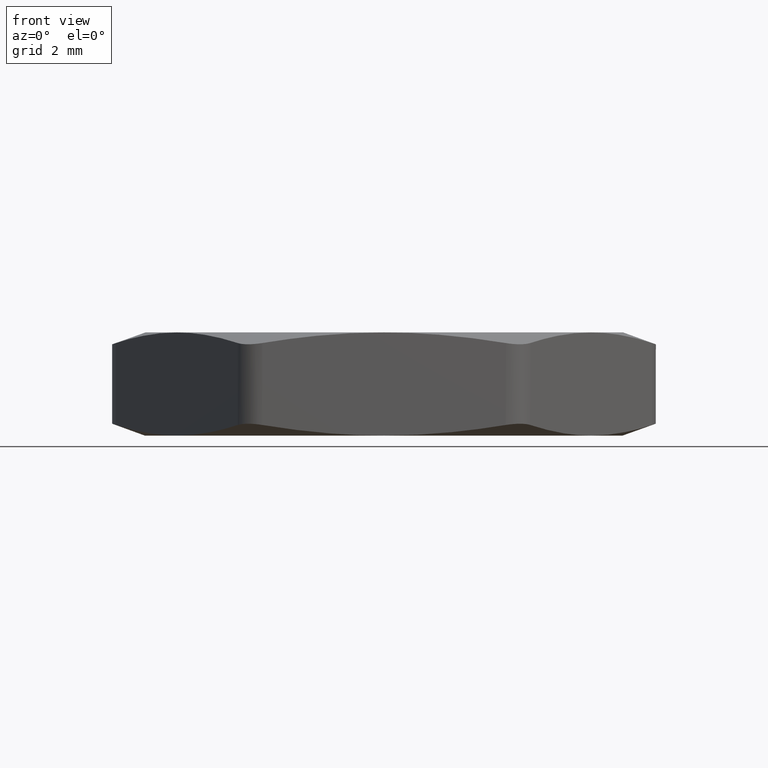
[diagram: clean part render]
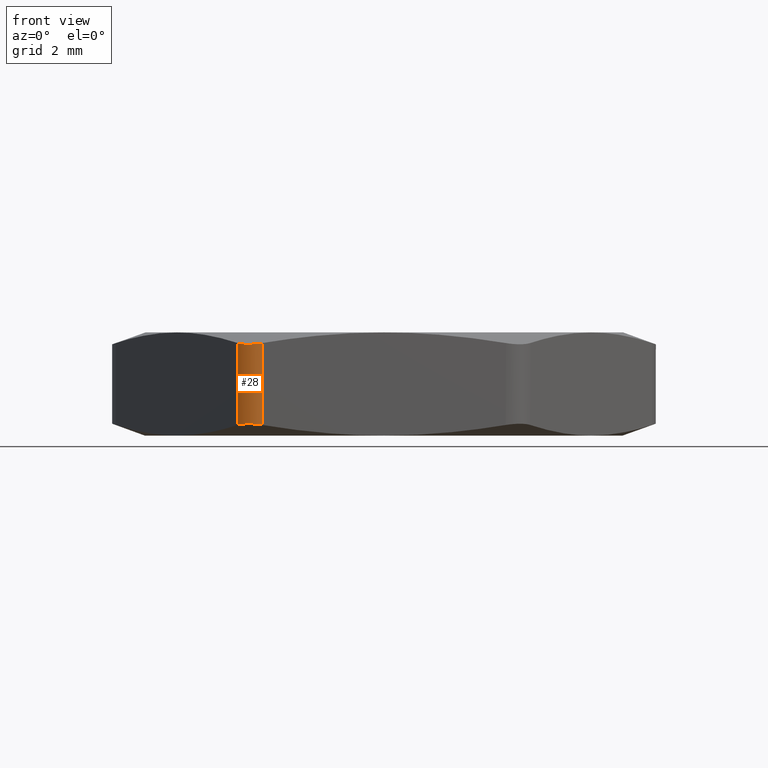
[diagram: same view with one face highlighted and labeled with its STEP entity id]
A machine part, front view. The second image highlights one B-rep face of the part: STEP entity #28.
In plain terms, the highlighted cylindrical surface (edge-blend (fillet) strip) has radius 0.762 mm, axis along (0, 0, -1).
Its self-contained STEP definition (entity closure, byte-faithful):
#19 = EDGE_CURVE ( 'NONE', #2263, #2274, #560, .T. ) ;
#20 = ORIENTED_EDGE ( 'NONE', *, *, #24, .T. ) ;
#21 = ORIENTED_EDGE ( 'NONE', *, *, #539, .F. ) ;
#22 = ORIENTED_EDGE ( 'NONE', *, *, #19, .T. ) ;
#24 = EDGE_CURVE ( 'NONE', #2301, #540, #548, .T. ) ;
#25 = ORIENTED_EDGE ( 'NONE', *, *, #2273, .F. ) ;
#26 = EDGE_LOOP ( 'NONE', ( #25, #20, #21, #22 ) ) ;
#28 = ADVANCED_FACE ( 'NONE', ( #547 ), #546, .T. ) ;
#539 = EDGE_CURVE ( 'NONE', #2263, #540, #1399, .T. ) ;
#540 = VERTEX_POINT ( 'NONE', #1395 ) ;
#546 = CYLINDRICAL_SURFACE ( 'NONE', #596, 0.03000000000000000600 ) ;
#547 = FACE_OUTER_BOUND ( 'NONE', #26, .T. ) ;
#548 = B_SPLINE_CURVE_WITH_KNOTS ( 'NONE', 3,
 ( #595, #594, #593, #592, #591, #590 ),
 .UNSPECIFIED., .F., .F.,
 ( 4, 2, 4 ),
 ( 2.308141957596479300E-007, 0.0003989327090014370000, 0.0007976346038071144200 ),
 .UNSPECIFIED. ) ;
#551 = CARTESIAN_POINT ( 'NONE',  ( -0.1558845726811991500, -0.2399999999999998500, 0.09865076735324981900 ) ) ;
#552 = CARTESIAN_POINT ( 'NONE',  ( -0.1532669242891911700, -0.2445339000113087000, 0.09778582509759849200 ) ) ;
#553 = CARTESIAN_POINT ( 'NONE',  ( -0.1494238507733264800, -0.2483745308461110000, 0.09733009693091693200 ) ) ;
#554 = CARTESIAN_POINT ( 'NONE',  ( -0.1403543587297263200, -0.2536039630998722600, 0.09733203016650710000 ) ) ;
#555 = CARTESIAN_POINT ( 'NONE',  ( -0.1351384526122213200, -0.2549999999999997800, 0.09778593326946521900 ) ) ;
#556 = CARTESIAN_POINT ( 'NONE',  ( -0.1299038105676662600, -0.2549999999999998900, 0.09865076735325024900 ) ) ;
#560 = B_SPLINE_CURVE_WITH_KNOTS ( 'NONE', 3,
 ( #556, #555, #554, #553, #552, #551 ),
 .UNSPECIFIED., .F., .F.,
 ( 4, 2, 4 ),
 ( 1.999075426448506800E-007, 0.0003989017886720164800, 0.0007976036698013881000 ),
 .UNSPECIFIED. ) ;
#586 = DIRECTION ( 'NONE',  ( -1.000000000000000000, 0.0000000000000000000, 0.0000000000000000000 ) ) ;
#587 = DIRECTION ( 'NONE',  ( 0.0000000000000000000, 0.0000000000000000000, -1.000000000000000000 ) ) ;
#588 = CARTESIAN_POINT ( 'NONE',  ( -0.1299038105676659800, -0.2249999999999998900, 0.1100000000000000000 ) ) ;
#590 = CARTESIAN_POINT ( 'NONE',  ( -0.1299038105676659800, -0.2549999999999998900, 0.01134923264675017200 ) ) ;
#591 = CARTESIAN_POINT ( 'NONE',  ( -0.1351391167837061900, -0.2549999999999998400, 0.01221417646070022300 ) ) ;
#592 = CARTESIAN_POINT ( 'NONE',  ( -0.1403867361018854600, -0.2535921146958886600, 0.01266990399071847200 ) ) ;
#593 = CARTESIAN_POINT ( 'NONE',  ( -0.1494503151299581000, -0.2483524069409374600, 0.01266796890586686200 ) ) ;
#594 = CARTESIAN_POINT ( 'NONE',  ( -0.1532672700022091300, -0.2445333012187966000, 0.01221406066941339200 ) ) ;
#595 = CARTESIAN_POINT ( 'NONE',  ( -0.1558845726811991500, -0.2399999999999998500, 0.01134923264675017500 ) ) ;
#596 = AXIS2_PLACEMENT_3D ( 'NONE', #588, #587, #586 ) ;
#1395 = CARTESIAN_POINT ( 'NONE',  ( -0.1299038105676659800, -0.2549999999999998900, 0.01134923264675017200 ) ) ;
#1396 = DIRECTION ( 'NONE',  ( 0.0000000000000000000, 0.0000000000000000000, -1.000000000000000000 ) ) ;
#1397 = VECTOR ( 'NONE', #1396, 39.37007874015748100 ) ;
#1398 = CARTESIAN_POINT ( 'NONE',  ( -0.1299038105676659800, -0.2549999999999998900, 0.1100000000000000000 ) ) ;
#1399 = LINE ( 'NONE', #1398, #1397 ) ;
#1809 = CARTESIAN_POINT ( 'NONE',  ( -0.1558845726811991500, -0.2399999999999998500, 0.09865076735324981900 ) ) ;
#1810 = DIRECTION ( 'NONE',  ( 0.0000000000000000000, 0.0000000000000000000, 1.000000000000000000 ) ) ;
#1811 = VECTOR ( 'NONE', #1810, 39.37007874015748100 ) ;
#1812 = CARTESIAN_POINT ( 'NONE',  ( -0.1558845726811991500, -0.2399999999999998500, 0.1100000000000000000 ) ) ;
#1813 = LINE ( 'NONE', #1812, #1811 ) ;
#1826 = CARTESIAN_POINT ( 'NONE',  ( -0.1299038105676662600, -0.2549999999999998900, 0.09865076735325024900 ) ) ;
#1899 = CARTESIAN_POINT ( 'NONE',  ( -0.1558845726811991500, -0.2399999999999998500, 0.01134923264675017500 ) ) ;
#2263 = VERTEX_POINT ( 'NONE', #1826 ) ;
#2273 = EDGE_CURVE ( 'NONE', #2301, #2274, #1813, .T. ) ;
#2274 = VERTEX_POINT ( 'NONE', #1809 ) ;
#2301 = VERTEX_POINT ( 'NONE', #1899 ) ;